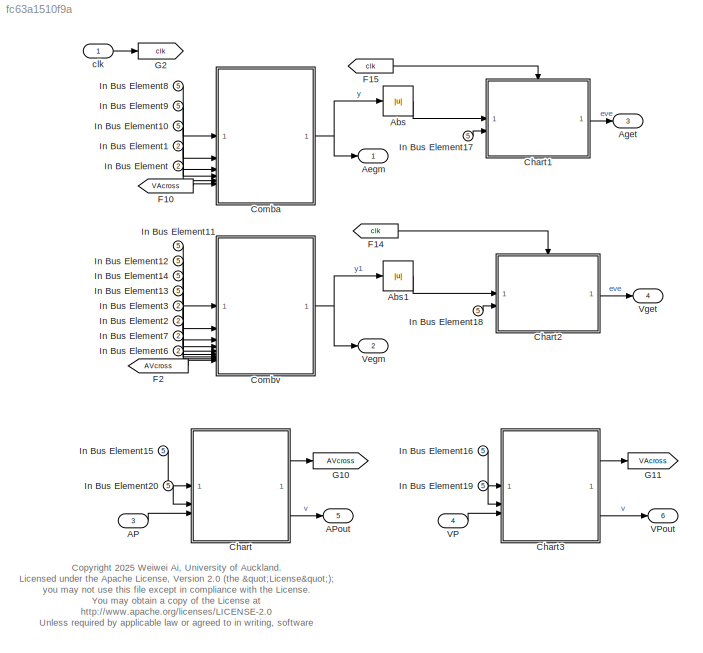
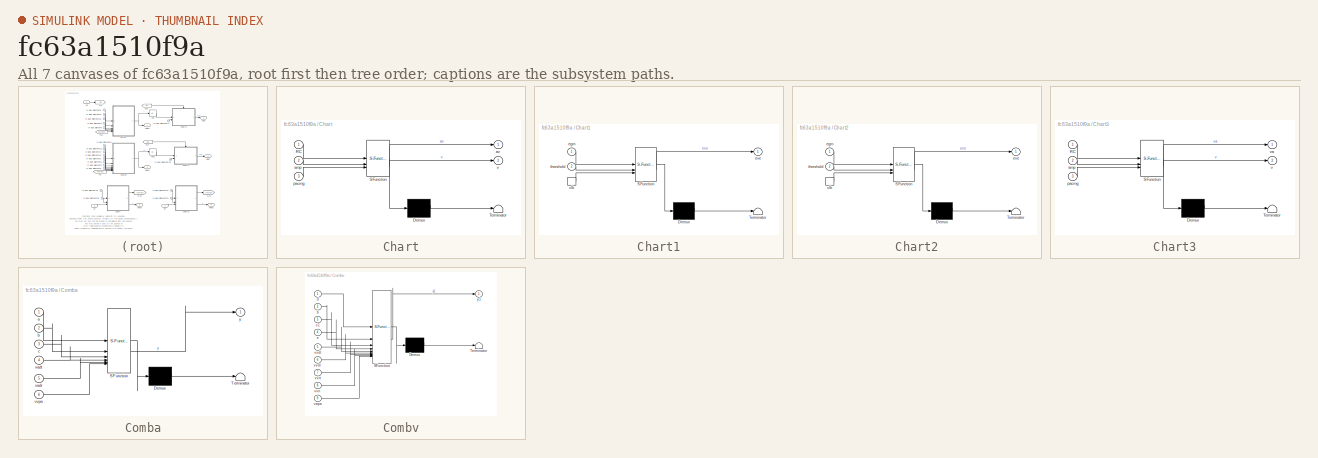
[diagram: thumbnail index - all 7 canvases of the model, root first then tree order]
MODEL slx_fc63a1510f9a
KIND model
CONFIG AbsTol = auto
CONFIG EnableMultiTasking = off
CONFIG FixedStep = 0.5e-3
CONFIG MaxStep = auto
CONFIG MinStep = auto
CONFIG RelTol = 1e-3
CONFIG SampleTimeConstraint = Unconstrained
CONFIG SolverName = ode1
CONFIG StartTime = 0.0
CONFIG StopTime = 10.0
BLOCK [Inport] AP
  OutDataTypeStr = double
  Port = 3
  PortDimensions = 1
  SamplingMode = Sample based
  SignalType = real
BLOCK [Outport] APout
  OutDataTypeStr = double
  Port = 5
  PortDimensions = 1
  SampleTime = [0,1]
  SamplingMode = Sample based
  SignalType = real
BLOCK [Abs] Abs
  SaturateOnIntegerOverflow = off
BLOCK [Abs] Abs1
  SaturateOnIntegerOverflow = off
BLOCK [Outport] Aegm
  OutDataTypeStr = double
  PortDimensions = 1
  SampleTime = [0,1]
  SamplingMode = Sample based
  SignalType = real
BLOCK [Outport] Aget
  OutDataTypeStr = double
  Port = 3
  PortDimensions = 1
  SamplingMode = Sample based
  SignalType = real
BLOCK [SubSystem] Chart
  ErrorFcn = Stateflow.Translate.translate
  PermitHierarchicalResolution = ExplicitOnly
  SFBlockType = Chart
  TreatAsAtomicUnit = on
BLOCK [Demux] Chart/ Demux 
  Outputs = 1
BLOCK [S-Function] Chart/ SFunction 
  EnableBusSupport = on
  FunctionName = sf_sfun
  PortCounts = [3 3]
  SFcnIsStateOwnerBlock = off
  SFunctionDeploymentMode = off
  Tag = Stateflow S-Function 31
BLOCK [Terminator] Chart/ Terminator 
BLOCK [Inport] Chart/RC
BLOCK [Inport] Chart/amp
  Port = 2
BLOCK [Outport] Chart/av
BLOCK [Inport] Chart/pacing
  Port = 3
BLOCK [Outport] Chart/v
  Port = 2
BLOCK [SubSystem] Chart1
  ErrorFcn = Stateflow.Translate.translate
  PermitHierarchicalResolution = ExplicitOnly
  SFBlockType = Chart
  TreatAsAtomicUnit = on
BLOCK [Demux] Chart1/ Demux 
  Outputs = 1
BLOCK [S-Function] Chart1/ SFunction 
  EnableBusSupport = on
  FunctionName = sf_sfun
  PortCounts = [3 2]
  SFcnIsStateOwnerBlock = off
  SFunctionDeploymentMode = off
  Tag = Stateflow S-Function 41
BLOCK [Terminator] Chart1/ Terminator 
BLOCK [TriggerPort] Chart1/clk
  ShowOutputPort = on
  StatesWhenEnabling = held
  VariantControl = Variant
BLOCK [Inport] Chart1/egm
BLOCK [Outport] Chart1/eve
BLOCK [Inport] Chart1/threshold
  Port = 2
BLOCK [SubSystem] Chart2
  ErrorFcn = Stateflow.Translate.translate
  PermitHierarchicalResolution = ExplicitOnly
  SFBlockType = Chart
  TreatAsAtomicUnit = on
BLOCK [Demux] Chart2/ Demux 
  Outputs = 1
BLOCK [S-Function] Chart2/ SFunction 
  EnableBusSupport = on
  FunctionName = sf_sfun
  PortCounts = [3 2]
  SFcnIsStateOwnerBlock = off
  SFunctionDeploymentMode = off
  Tag = Stateflow S-Function 32
BLOCK [Terminator] Chart2/ Terminator 
BLOCK [TriggerPort] Chart2/clk
  ShowOutputPort = on
  StatesWhenEnabling = held
  VariantControl = Variant
BLOCK [Inport] Chart2/egm
BLOCK [Outport] Chart2/eve
BLOCK [Inport] Chart2/threshold
  Port = 2
BLOCK [SubSystem] Chart3
  ErrorFcn = Stateflow.Translate.translate
  PermitHierarchicalResolution = ExplicitOnly
  SFBlockType = Chart
  TreatAsAtomicUnit = on
BLOCK [Demux] Chart3/ Demux 
  Outputs = 1
BLOCK [S-Function] Chart3/ SFunction 
  EnableBusSupport = on
  FunctionName = sf_sfun
  PortCounts = [3 3]
  SFcnIsStateOwnerBlock = off
  SFunctionDeploymentMode = off
  Tag = Stateflow S-Function 44
BLOCK [Terminator] Chart3/ Terminator 
BLOCK [Inport] Chart3/RC
BLOCK [Inport] Chart3/amp
  Port = 2
BLOCK [Inport] Chart3/pacing
  Port = 3
BLOCK [Outport] Chart3/v
  Port = 2
BLOCK [Outport] Chart3/va
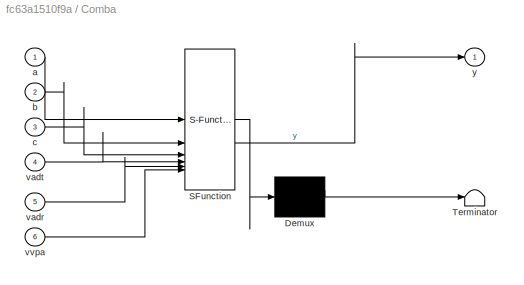
BLOCK [SubSystem] Comba
  ErrorFcn = Stateflow.Translate.translate
  PermitHierarchicalResolution = ExplicitOnly
  SFBlockType = MATLAB Function
  TreatAsAtomicUnit = on
BLOCK [Demux] Comba/ Demux 
  Outputs = 1
BLOCK [S-Function] Comba/ SFunction 
  EnableBusSupport = on
  FunctionName = sf_sfun
  PortCounts = [6 2]
  SFcnIsStateOwnerBlock = off
  SFunctionDeploymentMode = off
  Tag = Stateflow S-Function 36
BLOCK [Terminator] Comba/ Terminator 
BLOCK [Inport] Comba/a
BLOCK [Inport] Comba/b
  Port = 2
BLOCK [Inport] Comba/c
  Port = 3
BLOCK [Inport] Comba/vadr
  Port = 5
BLOCK [Inport] Comba/vadt
  Port = 4
BLOCK [Inport] Comba/vvpa
  Port = 6
BLOCK [Outport] Comba/y
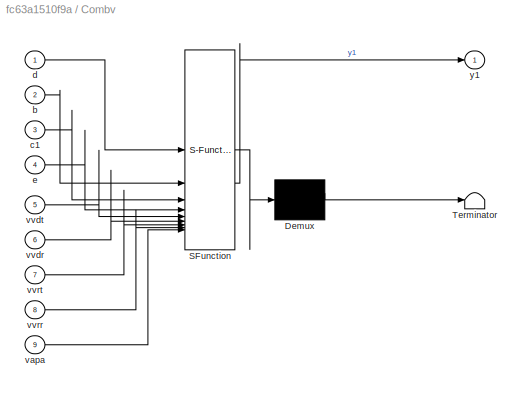
BLOCK [SubSystem] Combv
  ErrorFcn = Stateflow.Translate.translate
  PermitHierarchicalResolution = ExplicitOnly
  SFBlockType = MATLAB Function
  TreatAsAtomicUnit = on
BLOCK [Demux] Combv/ Demux 
  Outputs = 1
BLOCK [S-Function] Combv/ SFunction 
  EnableBusSupport = on
  FunctionName = sf_sfun
  PortCounts = [9 2]
  SFcnIsStateOwnerBlock = off
  SFunctionDeploymentMode = off
  Tag = Stateflow S-Function 37
BLOCK [Terminator] Combv/ Terminator 
BLOCK [Inport] Combv/b
  Port = 2
BLOCK [Inport] Combv/c1
  Port = 3
BLOCK [Inport] Combv/d
BLOCK [Inport] Combv/e
  Port = 4
BLOCK [Inport] Combv/vapa
  Port = 9
BLOCK [Inport] Combv/vvdr
  Port = 6
BLOCK [Inport] Combv/vvdt
  Port = 5
BLOCK [Inport] Combv/vvrr
  Port = 8
BLOCK [Inport] Combv/vvrt
  Port = 7
BLOCK [Outport] Combv/y1
BLOCK [From] F10
  GotoTag = VAcross
BLOCK [From] F14
  GotoTag = clk
BLOCK [From] F15
  GotoTag = clk
BLOCK [From] F2
  GotoTag = AVcross
BLOCK [Goto] G10
  GotoTag = AVcross
BLOCK [Goto] G11
  GotoTag = VAcross
BLOCK [Goto] G2
  GotoTag = clk
BLOCK [Inport] In Bus Element
  Port = 2
BLOCK [Inport] In Bus Element1
  Port = 2
BLOCK [Inport] In Bus Element10
  Port = 5
BLOCK [Inport] In Bus Element11
  Port = 5
BLOCK [Inport] In Bus Element12
  Port = 5
BLOCK [Inport] In Bus Element13
  Port = 5
BLOCK [Inport] In Bus Element14
  Port = 5
BLOCK [Inport] In Bus Element15
  Port = 5
BLOCK [Inport] In Bus Element16
  Port = 5
BLOCK [Inport] In Bus Element17
  Port = 5
BLOCK [Inport] In Bus Element18
  Port = 5
BLOCK [Inport] In Bus Element19
  Port = 5
BLOCK [Inport] In Bus Element2
  Port = 2
BLOCK [Inport] In Bus Element20
  Port = 5
BLOCK [Inport] In Bus Element3
  Port = 2
BLOCK [Inport] In Bus Element6
  Port = 2
BLOCK [Inport] In Bus Element7
  Port = 2
BLOCK [Inport] In Bus Element8
  Port = 5
BLOCK [Inport] In Bus Element9
  Port = 5
BLOCK [Inport] VP
  OutDataTypeStr = double
  Port = 4
  PortDimensions = 1
  SamplingMode = Sample based
  SignalType = real
BLOCK [Outport] VPout
  OutDataTypeStr = double
  Port = 6
  PortDimensions = 1
  SampleTime = [0,1]
  SamplingMode = Sample based
  SignalType = real
BLOCK [Outport] Vegm
  OutDataTypeStr = double
  Port = 2
  PortDimensions = 1
  SampleTime = [0,1]
  SamplingMode = Sample based
  SignalType = real
BLOCK [Outport] Vget
  OutDataTypeStr = double
  Port = 4
  PortDimensions = 1
  SamplingMode = Sample based
  SignalType = real
BLOCK [Inport] clk
  OutDataTypeStr = double
  PortDimensions = 1
  SamplingMode = Sample based
  SignalType = real
ANNOTATION (root): <copyright redacted>
LINE AP:1 -> Chart:3
LINE Abs1:1 -> Chart2:1
LINE Abs:1 -> Chart1:1
LINE Chart1:1 -> Aget:1
LINE Chart2:1 -> Vget:1
LINE Chart3:1 -> G11:1
LINE Chart3:2 -> VPout:1
LINE Chart:1 -> G10:1
LINE Chart:2 -> APout:1
NET Comba:1 -> Abs:1, Aegm:1
NET Combv:1 -> Abs1:1, Vegm:1
LINE F10:1 -> Comba:6
LINE F14:1 -> Chart2:trigger
LINE F15:1 -> Chart1:trigger
LINE F2:1 -> Combv:9
LINE In Bus Element10:1 -> Comba:3
LINE In Bus Element11:1 -> Combv:1
LINE In Bus Element12:1 -> Combv:2
LINE In Bus Element13:1 -> Combv:4
LINE In Bus Element14:1 -> Combv:3
LINE In Bus Element15:1 -> Chart:1
LINE In Bus Element16:1 -> Chart3:1
LINE In Bus Element17:1 -> Chart1:2
LINE In Bus Element18:1 -> Chart2:2
LINE In Bus Element19:1 -> Chart3:2
LINE In Bus Element1:1 -> Comba:4
LINE In Bus Element20:1 -> Chart:2
LINE In Bus Element2:1 -> Combv:6
LINE In Bus Element3:1 -> Combv:5
LINE In Bus Element6:1 -> Combv:8
LINE In Bus Element7:1 -> Combv:7
LINE In Bus Element8:1 -> Comba:1
LINE In Bus Element9:1 -> Comba:2
LINE In Bus Element:1 -> Comba:5
LINE VP:1 -> Chart3:3
LINE clk:1 -> G2:1
note: NET lines group one-source signal fan-out (src -> all destinations, sorted); 1:1 wires keep LINE
CHART Combv states=1 transitions=1
  STATE_LABEL 'eML_blk_kernel()'
  STATE_LABEL 'SCRIPT:\nfunction y1 = vegm(d,b,c1,e,vvdt,vvdr,vvrt,vvrr,vapa)\n%#codegen\n%VEGM Combine possible signals sensed by the ventricular lead.\n%   d, b, c1, e are used to determine which signals are present to the device.\n%\n%   Inputs:\n%       d - Weight for the amplitude of Aegm\n%       b - Weight for the amplitude of the signal sensed by the ring\n%       electrodes. When b=0, the output is unipolar.    ...<+535ch>'
CHART Chart1 states=1 transitions=3
  STATE_LABEL 'Ini\n'
CHART Chart3 states=9 transitions=9
  STATE_LABEL 'S'
  STATE_LABEL 'After_potential'
  STATE_LABEL 'Timer\ndu:\nt=temporalCount(msec);\nva=exp(-t)/RC;'
  STATE_LABEL 'Ini\n'
  STATE_LABEL 'waith\n'
  STATE_LABEL '[pacing==0]'
  STATE_LABEL '/{t=0;va=0;}'
  STATE_LABEL '[pacing>=1]'
  STATE_LABEL '[pacing>=1]/{t=0;va=0;}'
  STATE_LABEL 'Pulse'
  STATE_LABEL 'Ini\n\n'
  STATE_LABEL 'Timer\ndu:\nt1=temporalCount(msec);\nv=amp;'
  STATE_LABEL 'waitl'
  STATE_LABEL '[pacing>=1]'
  STATE_LABEL '/{t1=0;v=0;}'
  STATE_LABEL '[pacing==0]'
  STATE_LABEL '[after(3,msec)]/{v=0;}'
  STATE_LABEL 'After_potential'
  STATE_LABEL 'Timer\ndu:\nt=temporalCount(msec);\nva=exp(-t)/RC;'
  STATE_LABEL 'Ini\n'
  STATE_LABEL 'waith\n'
  STATE_LABEL '[pacing==0]'
  STATE_LABEL '/{t=0;va=0;}'
  STATE_LABEL '[pacing>=1]'
  STATE_LABEL '[pacing>=1]/{t=0;va=0;}'
  STATE_LABEL 'Timer\ndu:\nt=temporalCount(msec);\nva=exp(-t)/RC;'
  STATE_LABEL 'Ini\n'
  STATE_LABEL 'waith\n'
  STATE_LABEL 'Pulse'
  STATE_LABEL 'Ini\n\n'
  STATE_LABEL 'Timer\ndu:\nt1=temporalCount(msec);\nv=amp;'
  STATE_LABEL 'waitl'
  STATE_LABEL '[pacing>=1]'
  STATE_LABEL '/{t1=0;v=0;}'
  STATE_LABEL '[pacing==0]'
  STATE_LABEL '[after(3,msec)]/{v=0;}'
  STATE_LABEL 'Ini\n\n'
  STATE_LABEL 'Timer\ndu:\nt1=temporalCount(msec);\nv=amp;'
  STATE_LABEL 'waitl'
CHART Chart states=9 transitions=9
  STATE_LABEL 'S'
  STATE_LABEL 'After_potential'
  STATE_LABEL 'Timer\ndu:\nt=temporalCount(msec);\nav=exp(-t)/RC;'
  STATE_LABEL 'Ini\n'
  STATE_LABEL 'waith\n'
  STATE_LABEL '[pacing==0]'
  STATE_LABEL '/{t=0;av=0;}'
  STATE_LABEL '[pacing>=1]'
  STATE_LABEL '[pacing>=1]/{t=0;av=0;}'
  STATE_LABEL 'Pulse'
  STATE_LABEL 'Ini\n\n'
  STATE_LABEL 'Timer\ndu:\nt1=temporalCount(msec);\nv=amp;'
  STATE_LABEL 'waitl'
  STATE_LABEL '[pacing>=1]'
  STATE_LABEL '/{t1=0;v=0;}'
  STATE_LABEL '[pacing==0]'
  STATE_LABEL '[after(3,msec)]/{v=0;}'
  STATE_LABEL 'After_potential'
  STATE_LABEL 'Timer\ndu:\nt=temporalCount(msec);\nav=exp(-t)/RC;'
  STATE_LABEL 'Ini\n'
  STATE_LABEL 'waith\n'
  STATE_LABEL '[pacing==0]'
  STATE_LABEL '/{t=0;av=0;}'
  STATE_LABEL '[pacing>=1]'
  STATE_LABEL '[pacing>=1]/{t=0;av=0;}'
  STATE_LABEL 'Timer\ndu:\nt=temporalCount(msec);\nav=exp(-t)/RC;'
  STATE_LABEL 'Ini\n'
  STATE_LABEL 'waith\n'
  STATE_LABEL 'Pulse'
  STATE_LABEL 'Ini\n\n'
  STATE_LABEL 'Timer\ndu:\nt1=temporalCount(msec);\nv=amp;'
  STATE_LABEL 'waitl'
  STATE_LABEL '[pacing>=1]'
  STATE_LABEL '/{t1=0;v=0;}'
  STATE_LABEL '[pacing==0]'
  STATE_LABEL '[after(3,msec)]/{v=0;}'
  STATE_LABEL 'Ini\n\n'
  STATE_LABEL 'Timer\ndu:\nt1=temporalCount(msec);\nv=amp;'
  STATE_LABEL 'waitl'
CHART Chart2 states=1 transitions=3
  STATE_LABEL 'Ini\n'
CHART Comba states=1 transitions=1
  STATE_LABEL 'eML_blk_kernel()'
  STATE_LABEL 'SCRIPT:\nfunction y = aegm(a,b,c,vadt,vadr,vvpa)\n%#codegen\n%AEGM Combine possible signals sensed by the atrial lead.\n%   a, b, c are used to determine which signals are present to the device.\n%\n%   Inputs:\n%       a - Weight for the amplitude of Aegm\n%       b - Weight for the amplitude of the signal sensed by the ring\n%       electrodes. When b=0, the output is unipolar.          \n%       c - Scal...<+361ch>'
CHART  states=0 transitions=0
CHART  states=0 transitions=0
CHART  states=0 transitions=0
CHART  states=0 transitions=0
CHART  states=0 transitions=0
CHART  states=0 transitions=0
